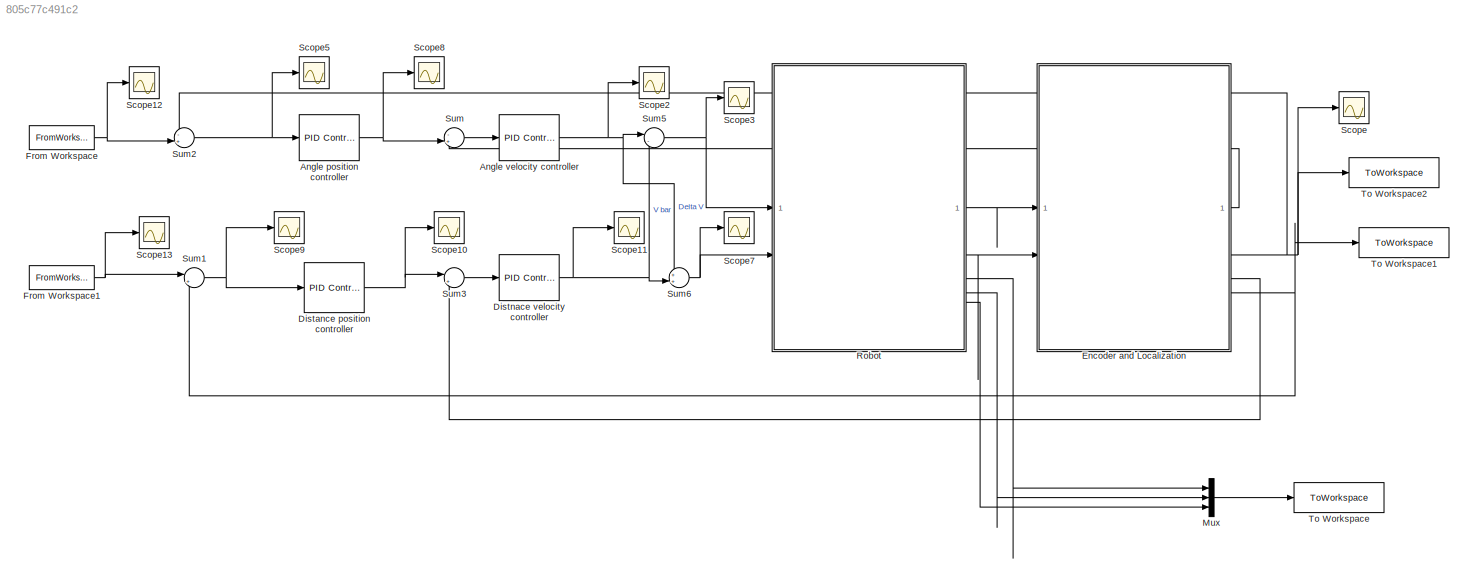
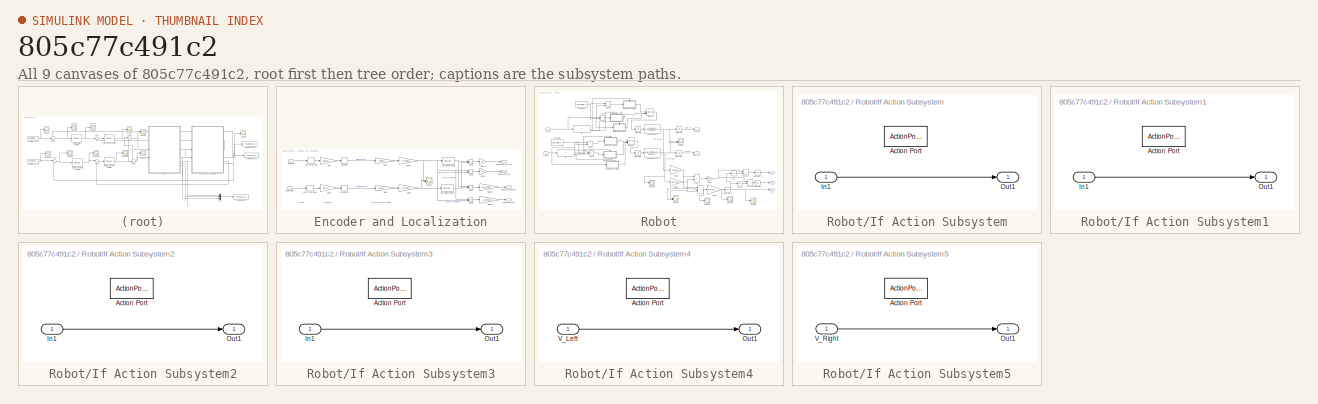
[diagram: thumbnail index - all 9 canvases of the model, root first then tree order]
MODEL slx_805c77c491c2
KIND model
CONFIG AbsTol = auto
CONFIG EnableMultiTasking = off
CONFIG FixedStep = auto
CONFIG MaxStep = auto
CONFIG MinStep = auto
CONFIG RelTol = 1e-3
CONFIG SampleTimeConstraint = Unconstrained
CONFIG SolverName = VariableStepAuto
CONFIG StartTime = 0.0
CONFIG StopTime = 15
BLOCK [Reference] Angle position controller  REF=slpidlib/PID Controller
  SourceBlock = slpidlib/PID Controller
  SourceType = PID 1dof
BLOCK [Reference] Angle velocity controller  REF=slpidlib/PID Controller
  SourceBlock = slpidlib/PID Controller
  SourceType = PID 1dof
BLOCK [Reference] Distance position controller  REF=slpidlib/PID Controller
  SourceBlock = slpidlib/PID Controller
  SourceType = PID 1dof
BLOCK [Reference] Distnace velocity controller  REF=slpidlib/PID Controller
  SourceBlock = slpidlib/PID Controller
  SourceType = PID 1dof
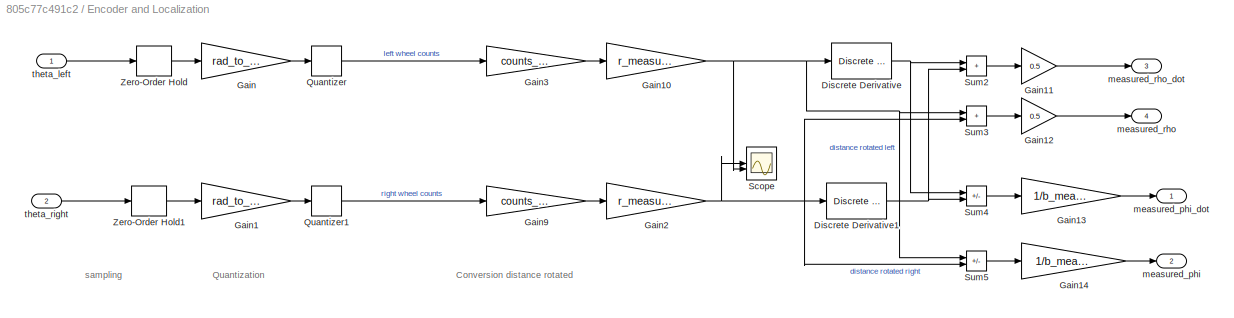
BLOCK [SubSystem] Encoder and Localization
BLOCK [Reference] Encoder and Localization/Discrete Derivative  REF=simulink/Discrete/Discrete Derivative
  SourceBlock = simulink/Discrete/Discrete Derivative
  SourceType = Discrete Derivative
BLOCK [Reference] Encoder and Localization/Discrete Derivative1  REF=simulink/Discrete/Discrete Derivative
  SourceBlock = simulink/Discrete/Discrete Derivative
  SourceType = Discrete Derivative
BLOCK [Gain] Encoder and Localization/Gain
  Gain = rad_to_counts
BLOCK [Gain] Encoder and Localization/Gain1
  Gain = rad_to_counts
BLOCK [Gain] Encoder and Localization/Gain10
  Gain = r_measured_ft
BLOCK [Gain] Encoder and Localization/Gain11
  Gain = 0.5
BLOCK [Gain] Encoder and Localization/Gain12
  Gain = 0.5
BLOCK [Gain] Encoder and Localization/Gain13
  Gain = 1/b_measured_ft
BLOCK [Gain] Encoder and Localization/Gain14
  Gain = 1/b_measured_ft
BLOCK [Gain] Encoder and Localization/Gain2
  Gain = r_measured_ft
BLOCK [Gain] Encoder and Localization/Gain3
  Gain = counts_to_rad
BLOCK [Gain] Encoder and Localization/Gain9
  Gain = counts_to_rad
BLOCK [Quantizer] Encoder and Localization/Quantizer
  QuantizationInterval = 1
BLOCK [Quantizer] Encoder and Localization/Quantizer1
  QuantizationInterval = 1
BLOCK [Scope] Encoder and Localization/Scope
  Floating = off
  NumInputPorts = 2
  ScopeSpecificationString = Simulink.scopes.TimeScopeBlockCfg('CurrentConfiguration', extmgr.ConfigurationSet(extmgr.Configuration('Core','General UI',true),extmgr.Configuration('Core','Source UI',true),extmgr.Configuration('Sources','WiredSimulink',true,'DataLoggingVariableName','ScopeData1'),extmgr.Configuration('Visuals','Time Domain',true,'SerializedDisplays',{struct('MinYLimReal','-0.27437','MaxYLimReal','2.46931','YLab...<+1434ch>
BLOCK [Sum] Encoder and Localization/Sum2
  IconShape = rectangular
BLOCK [Sum] Encoder and Localization/Sum3
  IconShape = rectangular
BLOCK [Sum] Encoder and Localization/Sum4
  IconShape = rectangular
  Inputs = -+
BLOCK [Sum] Encoder and Localization/Sum5
  IconShape = rectangular
  Inputs = -+
BLOCK [ZeroOrderHold] Encoder and Localization/Zero-Order Hold
  SampleTime = Ts
BLOCK [ZeroOrderHold] Encoder and Localization/Zero-Order Hold1
  SampleTime = Ts
BLOCK [Outport] Encoder and Localization/measured_phi
  Port = 2
BLOCK [Outport] Encoder and Localization/measured_phi_dot
BLOCK [Outport] Encoder and Localization/measured_rho
  Port = 4
BLOCK [Outport] Encoder and Localization/measured_rho_dot
  Port = 3
BLOCK [Inport] Encoder and Localization/theta_left
BLOCK [Inport] Encoder and Localization/theta_right
  Port = 2
BLOCK [FromWorkspace] From Workspace
  VariableName = phi_d
BLOCK [FromWorkspace] From Workspace1
  VariableName = rho_d
BLOCK [Mux] Mux
  DisplayOption = bar
  Inputs = 3
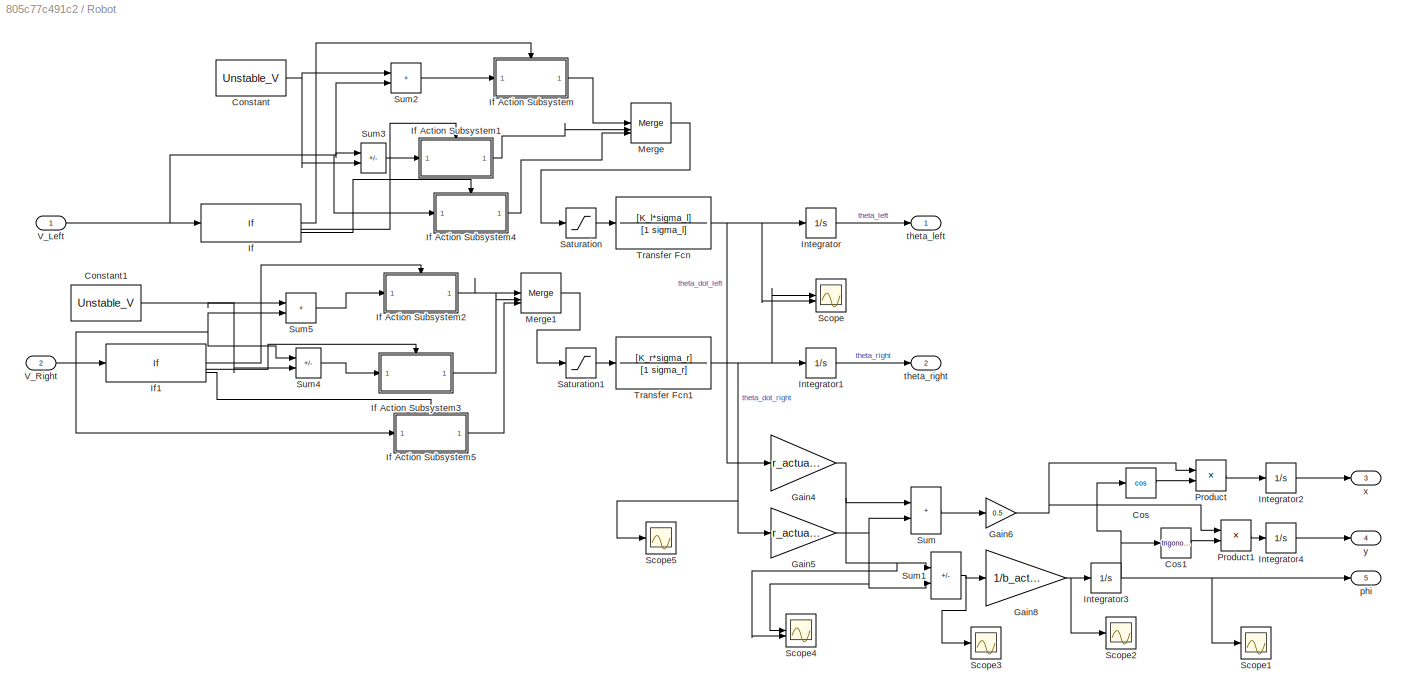
BLOCK [SubSystem] Robot
BLOCK [Constant] Robot/Constant
  Value = Unstable_V
BLOCK [Constant] Robot/Constant1
  Value = Unstable_V
BLOCK [Trigonometry] Robot/Cos
  Operator = cos
BLOCK [Trigonometry] Robot/Cos1
BLOCK [Gain] Robot/Gain4
  Gain = r_actual_ft
BLOCK [Gain] Robot/Gain5
  Gain = r_actual_ft
BLOCK [Gain] Robot/Gain6
  Gain = 0.5
BLOCK [Gain] Robot/Gain8
  Gain = 1/b_actual_ft
BLOCK [If] Robot/If
  ElseIfExpressions = u1 < 0
BLOCK [SubSystem] Robot/If Action Subsystem
  TreatAsAtomicUnit = on
BLOCK [ActionPort] Robot/If Action Subsystem/Action Port
  ActionPortLabel = if(u1 > 0)
BLOCK [Inport] Robot/If Action Subsystem/In1
BLOCK [Outport] Robot/If Action Subsystem/Out1
BLOCK [SubSystem] Robot/If Action Subsystem1
  TreatAsAtomicUnit = on
BLOCK [ActionPort] Robot/If Action Subsystem1/Action Port
  ActionPortLabel = elseif(u1 < 0)
BLOCK [Inport] Robot/If Action Subsystem1/In1
BLOCK [Outport] Robot/If Action Subsystem1/Out1
BLOCK [SubSystem] Robot/If Action Subsystem2
  TreatAsAtomicUnit = on
BLOCK [ActionPort] Robot/If Action Subsystem2/Action Port
  ActionPortLabel = if(u1 > 0)
BLOCK [Inport] Robot/If Action Subsystem2/In1
BLOCK [Outport] Robot/If Action Subsystem2/Out1
BLOCK [SubSystem] Robot/If Action Subsystem3
  TreatAsAtomicUnit = on
BLOCK [ActionPort] Robot/If Action Subsystem3/Action Port
  ActionPortLabel = elseif(u1 < 0)
BLOCK [Inport] Robot/If Action Subsystem3/In1
BLOCK [Outport] Robot/If Action Subsystem3/Out1
BLOCK [SubSystem] Robot/If Action Subsystem4
  TreatAsAtomicUnit = on
BLOCK [ActionPort] Robot/If Action Subsystem4/Action Port
  ActionPortLabel = else
BLOCK [Outport] Robot/If Action Subsystem4/Out1
BLOCK [Inport] Robot/If Action Subsystem4/V_Left
BLOCK [SubSystem] Robot/If Action Subsystem5
  TreatAsAtomicUnit = on
BLOCK [ActionPort] Robot/If Action Subsystem5/Action Port
  ActionPortLabel = else
BLOCK [Outport] Robot/If Action Subsystem5/Out1
BLOCK [Inport] Robot/If Action Subsystem5/V_Right
BLOCK [If] Robot/If1
  ElseIfExpressions = u1 < 0
BLOCK [Integrator] Robot/Integrator
BLOCK [Integrator] Robot/Integrator1
BLOCK [Integrator] Robot/Integrator2
BLOCK [Integrator] Robot/Integrator3
BLOCK [Integrator] Robot/Integrator4
BLOCK [Merge] Robot/Merge
  Inputs = 3
BLOCK [Merge] Robot/Merge1
  Inputs = 3
BLOCK [Product] Robot/Product
BLOCK [Product] Robot/Product1
BLOCK [Saturate] Robot/Saturation
  LowerLimit = -V_max
  UpperLimit = V_max
BLOCK [Saturate] Robot/Saturation1
  LowerLimit = -(V_max+Unstable_V)
  UpperLimit = V_max+Unstable_V
BLOCK [Scope] Robot/Scope
  Floating = off
  NumInputPorts = 2
  ScopeSpecificationString = Simulink.scopes.TimeScopeBlockCfg('CurrentConfiguration', extmgr.ConfigurationSet(extmgr.Configuration('Core','General UI',true),extmgr.Configuration('Core','Source UI',true),extmgr.Configuration('Sources','WiredSimulink',true,'DataLoggingVariableName','ScopeData2'),extmgr.Configuration('Visuals','Time Domain',true,'SerializedDisplays',{struct('MinYLimReal','-0.67684','MaxYLimReal','2.337','YLabel...<+1381ch>
BLOCK [Scope] Robot/Scope1
  Floating = off
  NumInputPorts = 1
  ScopeSpecificationString = Simulink.scopes.TimeScopeBlockCfg('CurrentConfiguration', extmgr.ConfigurationSet(extmgr.Configuration('Core','General UI',true),extmgr.Configuration('Core','Source UI',true),extmgr.Configuration('Sources','WiredSimulink',true,'DataLoggingVariableName','ScopeData3'),extmgr.Configuration('Visuals','Time Domain',true,'SerializedDisplays',{struct('MinYLimReal','-1.00000','MaxYLimReal','1.00000','YLab...<+1400ch>
BLOCK [Scope] Robot/Scope2
  Floating = off
  NumInputPorts = 1
  ScopeSpecificationString = Simulink.scopes.TimeScopeBlockCfg('CurrentConfiguration', extmgr.ConfigurationSet(extmgr.Configuration('Core','General UI',true),extmgr.Configuration('Core','Source UI',true),extmgr.Configuration('Sources','WiredSimulink',true,'DataLoggingVariableName','ScopeData4'),extmgr.Configuration('Visuals','Time Domain',true,'SerializedDisplays',{struct('MinYLimReal','-1.00000','MaxYLimReal','1.00000','YLab...<+1398ch>
BLOCK [Scope] Robot/Scope3
  Floating = off
  NumInputPorts = 1
  ScopeSpecificationString = Simulink.scopes.TimeScopeBlockCfg('CurrentConfiguration', extmgr.ConfigurationSet(extmgr.Configuration('Core','General UI',true),extmgr.Configuration('Core','Source UI',true),extmgr.Configuration('Sources','WiredSimulink',true,'DataLoggingVariableName','ScopeData5'),extmgr.Configuration('Visuals','Time Domain',true,'SerializedDisplays',{struct('MinYLimReal','-1.00000','MaxYLimReal','1.00000','YLab...<+1395ch>
BLOCK [Scope] Robot/Scope4
  Floating = off
  NumInputPorts = 2
  ScopeSpecificationString = Simulink.scopes.TimeScopeBlockCfg('CurrentConfiguration', extmgr.ConfigurationSet(extmgr.Configuration('Core','General UI',true),extmgr.Configuration('Core','Source UI',true),extmgr.Configuration('Sources','WiredSimulink',true,'DataLoggingVariableName','ScopeData6'),extmgr.Configuration('Visuals','Time Domain',true,'SerializedDisplays',{struct('MinYLimReal','-0.16427','MaxYLimReal','0.56719','YLab...<+1403ch>
BLOCK [Scope] Robot/Scope5
  Floating = off
  NumInputPorts = 1
  ScopeSpecificationString = Simulink.scopes.TimeScopeBlockCfg('CurrentConfiguration', extmgr.ConfigurationSet(extmgr.Configuration('Core','General UI',true),extmgr.Configuration('Core','Source UI',true),extmgr.Configuration('Sources','WiredSimulink',true,'DataLoggingVariableName','ScopeData7'),extmgr.Configuration('Visuals','Time Domain',true,'SerializedDisplays',{struct('MinYLimReal','-0.67684','MaxYLimReal','2.337','YLabel...<+1396ch>
BLOCK [Sum] Robot/Sum
  IconShape = rectangular
BLOCK [Sum] Robot/Sum1
  IconShape = rectangular
  Inputs = -+
BLOCK [Sum] Robot/Sum2
  IconShape = rectangular
  Inputs = |++
BLOCK [Sum] Robot/Sum3
  IconShape = rectangular
  Inputs = |+-
BLOCK [Sum] Robot/Sum4
  IconShape = rectangular
  Inputs = |+-
BLOCK [Sum] Robot/Sum5
  IconShape = rectangular
  Inputs = |++
BLOCK [TransferFcn] Robot/Transfer Fcn
  Denominator = [1 sigma_l]
  Numerator = [K_l*sigma_l]
BLOCK [TransferFcn] Robot/Transfer Fcn1
  Denominator = [1 sigma_r]
  Numerator = [K_r*sigma_r]
BLOCK [Inport] Robot/V_Left
BLOCK [Inport] Robot/V_Right
  Port = 2
BLOCK [Outport] Robot/phi
  Port = 5
BLOCK [Outport] Robot/theta_left
BLOCK [Outport] Robot/theta_right
  Port = 2
BLOCK [Outport] Robot/x
  Port = 3
BLOCK [Outport] Robot/y
  Port = 4
BLOCK [Scope] Scope
  Floating = off
  NumInputPorts = 1
  ScopeSpecificationString = Simulink.scopes.TimeScopeBlockCfg('CurrentConfiguration', extmgr.ConfigurationSet(extmgr.Configuration('Core','General UI',true),extmgr.Configuration('Core','Source UI',true),extmgr.Configuration('Sources','WiredSimulink',true,'DataLoggingVariableName','ScopeData8'),extmgr.Configuration('Visuals','Time Domain',true),extmgr.Configuration('Tools','Plot Navigation',true),extmgr.Configuration('Tools',...<+40ch>
BLOCK [Scope] Scope10
  Floating = off
  NumInputPorts = 1
  ScopeSpecificationString = Simulink.scopes.TimeScopeBlockCfg('CurrentConfiguration', extmgr.ConfigurationSet(extmgr.Configuration('Core','General UI',true),extmgr.Configuration('Core','Source UI',true),extmgr.Configuration('Sources','WiredSimulink',true,'DataLoggingVariableName','ScopeData2'),extmgr.Configuration('Visuals','Time Domain',true,'SerializedDisplays',{struct('MinYLimReal','-0.32941','MaxYLimReal','1.14771','YLab...<+1415ch>
BLOCK [Scope] Scope11
  Floating = off
  NumInputPorts = 1
  ScopeSpecificationString = Simulink.scopes.TimeScopeBlockCfg('CurrentConfiguration', extmgr.ConfigurationSet(extmgr.Configuration('Core','General UI',true),extmgr.Configuration('Core','Source UI',true),extmgr.Configuration('Sources','WiredSimulink',true,'DataLoggingVariableName','ScopeData3'),extmgr.Configuration('Visuals','Time Domain',true,'SerializedDisplays',{struct('MinYLimReal','-0.87033','MaxYLimReal','2.47114','YLab...<+1392ch>
BLOCK [Scope] Scope12
  Floating = off
  NumInputPorts = 1
  ScopeSpecificationString = Simulink.scopes.TimeScopeBlockCfg('CurrentConfiguration', extmgr.ConfigurationSet(extmgr.Configuration('Core','General UI',true),extmgr.Configuration('Core','Source UI',true),extmgr.Configuration('Sources','WiredSimulink',true,'DataLoggingVariableName','ScopeData4'),extmgr.Configuration('Visuals','Time Domain',true,'SerializedDisplays',{struct('MinYLimReal','-1.00000','MaxYLimReal','1.00000','YLab...<+1401ch>
BLOCK [Scope] Scope13
  Floating = off
  NumInputPorts = 1
  ScopeSpecificationString = Simulink.scopes.TimeScopeBlockCfg('CurrentConfiguration', extmgr.ConfigurationSet(extmgr.Configuration('Core','General UI',true),extmgr.Configuration('Core','Source UI',true),extmgr.Configuration('Sources','WiredSimulink',true,'DataLoggingVariableName','ScopeData5'),extmgr.Configuration('Visuals','Time Domain',true,'SerializedDisplays',{struct('MinYLimReal','-0.375','MaxYLimReal','3.375','YLabelRe...<+1390ch>
BLOCK [Scope] Scope2
  Floating = off
  NumInputPorts = 1
  ScopeSpecificationString = Simulink.scopes.TimeScopeBlockCfg('CurrentConfiguration', extmgr.ConfigurationSet(extmgr.Configuration('Core','General UI',true),extmgr.Configuration('Core','Source UI',true),extmgr.Configuration('Sources','WiredSimulink',true,'DataLoggingVariableName','ScopeData6'),extmgr.Configuration('Visuals','Time Domain',true,'SerializedDisplays',{struct('MinYLimReal','-1.00000','MaxYLimReal','1.00000','YLab...<+1396ch>
BLOCK [Scope] Scope3
  Floating = off
  NumInputPorts = 1
  ScopeSpecificationString = Simulink.scopes.TimeScopeBlockCfg('CurrentConfiguration', extmgr.ConfigurationSet(extmgr.Configuration('Core','General UI',true),extmgr.Configuration('Core','Source UI',true),extmgr.Configuration('Sources','WiredSimulink',true,'DataLoggingVariableName','ScopeData7'),extmgr.Configuration('Visuals','Time Domain',true,'SerializedDisplays',{struct('MinYLimReal','-0.87033','MaxYLimReal','2.47114','YLab...<+1391ch>
BLOCK [Scope] Scope5
  Floating = off
  NumInputPorts = 1
  ScopeSpecificationString = Simulink.scopes.TimeScopeBlockCfg('CurrentConfiguration', extmgr.ConfigurationSet(extmgr.Configuration('Core','General UI',true),extmgr.Configuration('Core','Source UI',true),extmgr.Configuration('Sources','WiredSimulink',true,'DataLoggingVariableName','ScopeData9'),extmgr.Configuration('Visuals','Time Domain',true,'SerializedDisplays',{struct('MinYLimReal','-1.00000','MaxYLimReal','1.00000','YLab...<+1396ch>
BLOCK [Scope] Scope7
  Floating = off
  NumInputPorts = 1
  ScopeSpecificationString = Simulink.scopes.TimeScopeBlockCfg('CurrentConfiguration', extmgr.ConfigurationSet(extmgr.Configuration('Core','General UI',true),extmgr.Configuration('Core','Source UI',true),extmgr.Configuration('Sources','WiredSimulink',true,'DataLoggingVariableName','ScopeData11'),extmgr.Configuration('Visuals','Time Domain',true,'SerializedDisplays',{struct('MinYLimReal','-0.87033','MaxYLimReal','2.47114','YLa...<+1392ch>
BLOCK [Scope] Scope8
  Floating = off
  NumInputPorts = 1
  ScopeSpecificationString = Simulink.scopes.TimeScopeBlockCfg('CurrentConfiguration', extmgr.ConfigurationSet(extmgr.Configuration('Core','General UI',true),extmgr.Configuration('Core','Source UI',true),extmgr.Configuration('Sources','WiredSimulink',true,'DataLoggingVariableName','ScopeData12'),extmgr.Configuration('Visuals','Time Domain',true,'SerializedDisplays',{struct('MinYLimReal','-1.00000','MaxYLimReal','1.00000','YLa...<+1418ch>
BLOCK [Scope] Scope9
  Floating = off
  NumInputPorts = 1
  ScopeSpecificationString = Simulink.scopes.TimeScopeBlockCfg('CurrentConfiguration', extmgr.ConfigurationSet(extmgr.Configuration('Core','General UI',true),extmgr.Configuration('Core','Source UI',true),extmgr.Configuration('Sources','WiredSimulink',true),extmgr.Configuration('Visuals','Time Domain',true,'SerializedDisplays',{struct('MinYLimReal','-0.24302','MaxYLimReal','0.23776','YLabelReal','','MinYLimMag','0.00000','MaxY...<+1352ch>
BLOCK [Sum] Sum
  Inputs = -+|
BLOCK [Sum] Sum1
  Inputs = |+-
BLOCK [Sum] Sum2
  Inputs = -+|
BLOCK [Sum] Sum3
  Inputs = |+-
BLOCK [Sum] Sum5
  Inputs = |-+
BLOCK [Sum] Sum6
  Inputs = ++|
BLOCK [ToWorkspace] To Workspace
  FixptAsFi = on
  MaxDataPoints = inf
  SampleTime = .1
  SaveFormat = Timeseries
  VariableName = Pos
BLOCK [ToWorkspace] To Workspace1
  FixptAsFi = on
  MaxDataPoints = inf
  SampleTime = .1
  SaveFormat = Timeseries
  VariableName = rho
BLOCK [ToWorkspace] To Workspace2
  FixptAsFi = on
  MaxDataPoints = inf
  SampleTime = .1
  SaveFormat = Timeseries
  VariableName = phi
ANNOTATION Encoder and Localization: Conversion distance rotated
ANNOTATION Encoder and Localization: Quantization
ANNOTATION Encoder and Localization: sampling
NET Angle position controller:1 -> Scope8:1, Sum:2
NET Angle velocity controller:1 -> Scope2:1, Sum5:1, Sum6:1
NET Distance position controller:1 -> Scope10:1, Sum3:1
NET Distnace velocity controller:1 -> Scope11:1, Sum5:2, Sum6:2
NET Encoder and Localization/Discrete Derivative1:1 -> Encoder and Localization/Sum2:2, Encoder and Localization/Sum4:2
NET Encoder and Localization/Discrete Derivative:1 -> Encoder and Localization/Sum2:1, Encoder and Localization/Sum4:1
NET Encoder and Localization/Gain10:1 -> Encoder and Localization/Discrete Derivative:1, Encoder and Localization/Scope:2, Encoder and Localization/Sum3:1, Encoder and Localization/Sum5:1
LINE Encoder and Localization/Gain11:1 -> Encoder and Localization/measured_rho_dot:1
LINE Encoder and Localization/Gain12:1 -> Encoder and Localization/measured_rho:1
LINE Encoder and Localization/Gain13:1 -> Encoder and Localization/measured_phi_dot:1
LINE Encoder and Localization/Gain14:1 -> Encoder and Localization/measured_phi:1
LINE Encoder and Localization/Gain1:1 -> Encoder and Localization/Quantizer1:1
NET Encoder and Localization/Gain2:1 -> Encoder and Localization/Discrete Derivative1:1, Encoder and Localization/Scope:1, Encoder and Localization/Sum3:2, Encoder and Localization/Sum5:2
LINE Encoder and Localization/Gain3:1 -> Encoder and Localization/Gain10:1
LINE Encoder and Localization/Gain9:1 -> Encoder and Localization/Gain2:1
LINE Encoder and Localization/Gain:1 -> Encoder and Localization/Quantizer:1
LINE Encoder and Localization/Quantizer1:1 -> Encoder and Localization/Gain9:1
LINE Encoder and Localization/Quantizer:1 -> Encoder and Localization/Gain3:1
LINE Encoder and Localization/Sum2:1 -> Encoder and Localization/Gain11:1
LINE Encoder and Localization/Sum3:1 -> Encoder and Localization/Gain12:1
LINE Encoder and Localization/Sum4:1 -> Encoder and Localization/Gain13:1
LINE Encoder and Localization/Sum5:1 -> Encoder and Localization/Gain14:1
LINE Encoder and Localization/Zero-Order Hold1:1 -> Encoder and Localization/Gain1:1
LINE Encoder and Localization/Zero-Order Hold:1 -> Encoder and Localization/Gain:1
LINE Encoder and Localization/theta_left:1 -> Encoder and Localization/Zero-Order Hold:1
LINE Encoder and Localization/theta_right:1 -> Encoder and Localization/Zero-Order Hold1:1
LINE Encoder and Localization:1 -> Sum:1
NET Encoder and Localization:2 -> Scope:1, Sum2:1, To Workspace2:1
LINE Encoder and Localization:3 -> Sum3:2
NET Encoder and Localization:4 -> Sum1:2, To Workspace1:1
NET From Workspace1:1 -> Scope13:1, Sum1:1
NET From Workspace:1 -> Scope12:1, Sum2:2
LINE Mux:1 -> To Workspace:1
NET Robot/Constant1:1 -> Robot/Sum4:2, Robot/Sum5:1
NET Robot/Constant:1 -> Robot/Sum2:1, Robot/Sum3:2
LINE Robot/Cos1:1 -> Robot/Product1:2
LINE Robot/Cos:1 -> Robot/Product:2
NET Robot/Gain4:1 -> Robot/Scope4:2, Robot/Sum1:1, Robot/Sum:1
NET Robot/Gain5:1 -> Robot/Scope4:1, Robot/Sum1:2, Robot/Sum:2
NET Robot/Gain6:1 -> Robot/Product1:1, Robot/Product:1
NET Robot/Gain8:1 -> Robot/Integrator3:1, Robot/Scope2:1
LINE Robot/If Action Subsystem/In1:1 -> Robot/If Action Subsystem/Out1:1
LINE Robot/If Action Subsystem1/In1:1 -> Robot/If Action Subsystem1/Out1:1
LINE Robot/If Action Subsystem1:1 -> Robot/Merge:2
LINE Robot/If Action Subsystem2/In1:1 -> Robot/If Action Subsystem2/Out1:1
LINE Robot/If Action Subsystem2:1 -> Robot/Merge1:1
LINE Robot/If Action Subsystem3/In1:1 -> Robot/If Action Subsystem3/Out1:1
LINE Robot/If Action Subsystem3:1 -> Robot/Merge1:2
LINE Robot/If Action Subsystem4/V_Left:1 -> Robot/If Action Subsystem4/Out1:1
LINE Robot/If Action Subsystem4:1 -> Robot/Merge:3
LINE Robot/If Action Subsystem5/V_Right:1 -> Robot/If Action Subsystem5/Out1:1
LINE Robot/If Action Subsystem5:1 -> Robot/Merge1:3
LINE Robot/If Action Subsystem:1 -> Robot/Merge:1
LINE Robot/If1:1 -> Robot/If Action Subsystem2:ifaction
LINE Robot/If1:2 -> Robot/If Action Subsystem3:ifaction
LINE Robot/If1:3 -> Robot/If Action Subsystem5:ifaction
LINE Robot/If:1 -> Robot/If Action Subsystem:ifaction
LINE Robot/If:2 -> Robot/If Action Subsystem1:ifaction
LINE Robot/If:3 -> Robot/If Action Subsystem4:ifaction
LINE Robot/Integrator1:1 -> Robot/theta_right:1
LINE Robot/Integrator2:1 -> Robot/x:1
NET Robot/Integrator3:1 -> Robot/Cos1:1, Robot/Cos:1, Robot/Scope1:1, Robot/phi:1
LINE Robot/Integrator4:1 -> Robot/y:1
LINE Robot/Integrator:1 -> Robot/theta_left:1
LINE Robot/Merge1:1 -> Robot/Saturation1:1
LINE Robot/Merge:1 -> Robot/Saturation:1
LINE Robot/Product1:1 -> Robot/Integrator4:1
LINE Robot/Product:1 -> Robot/Integrator2:1
LINE Robot/Saturation1:1 -> Robot/Transfer Fcn1:1
LINE Robot/Saturation:1 -> Robot/Transfer Fcn:1
NET Robot/Sum1:1 -> Robot/Gain8:1, Robot/Scope3:1
LINE Robot/Sum2:1 -> Robot/If Action Subsystem:1
LINE Robot/Sum3:1 -> Robot/If Action Subsystem1:1
LINE Robot/Sum4:1 -> Robot/If Action Subsystem3:1
LINE Robot/Sum5:1 -> Robot/If Action Subsystem2:1
LINE Robot/Sum:1 -> Robot/Gain6:1
NET Robot/Transfer Fcn1:1 -> Robot/Gain5:1, Robot/Integrator1:1, Robot/Scope5:1, Robot/Scope:1
NET Robot/Transfer Fcn:1 -> Robot/Gain4:1, Robot/Integrator:1, Robot/Scope:2
NET Robot/V_Left:1 -> Robot/If Action Subsystem4:1, Robot/If:1, Robot/Sum2:2, Robot/Sum3:1
NET Robot/V_Right:1 -> Robot/If Action Subsystem5:1, Robot/If1:1, Robot/Sum4:1, Robot/Sum5:2
LINE Robot:1 -> Encoder and Localization:1
LINE Robot:2 -> Encoder and Localization:2
LINE Robot:3 -> Mux:1
LINE Robot:4 -> Mux:2
LINE Robot:5 -> Mux:3
NET Sum1:1 -> Distance position controller:1, Scope9:1
NET Sum2:1 -> Angle position controller:1, Scope5:1
LINE Sum3:1 -> Distnace velocity controller:1
NET Sum5:1 -> Robot:1, Scope3:1
NET Sum6:1 -> Robot:2, Scope7:1
LINE Sum:1 -> Angle velocity controller:1
note: NET lines group one-source signal fan-out (src -> all destinations, sorted); 1:1 wires keep LINE
